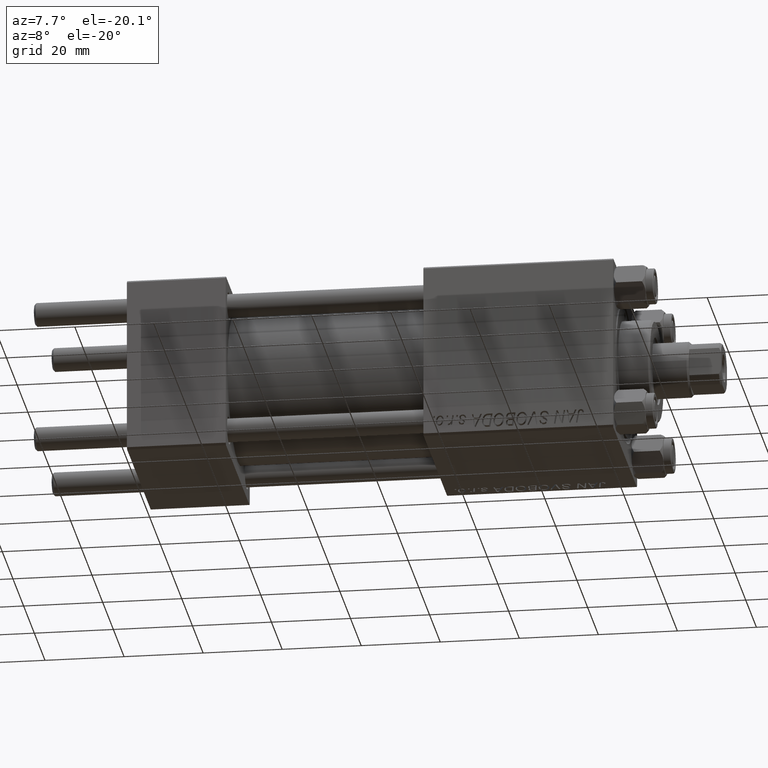
[diagram: clean part render]
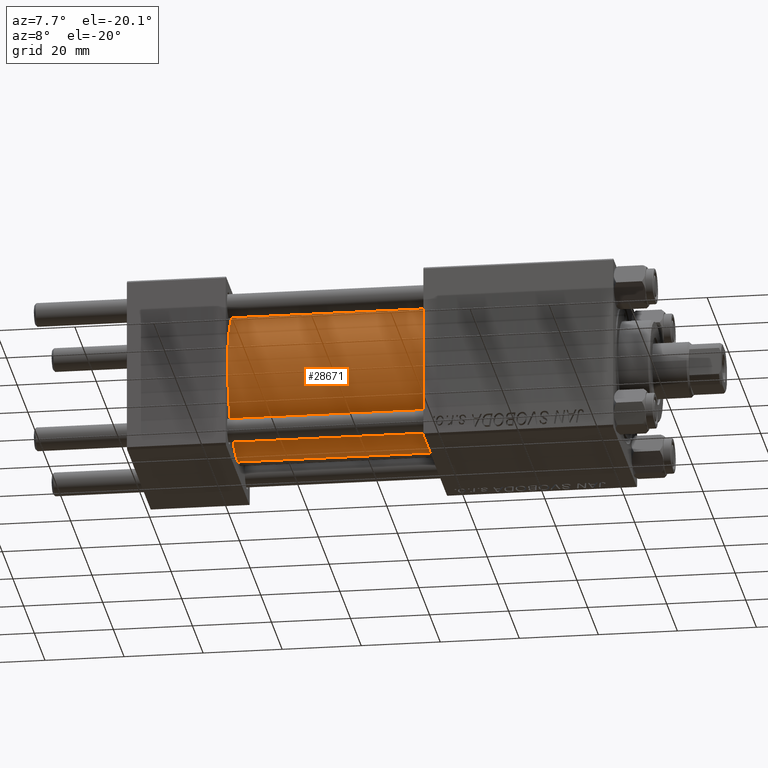
[diagram: same view with one face highlighted and labeled with its STEP entity id]
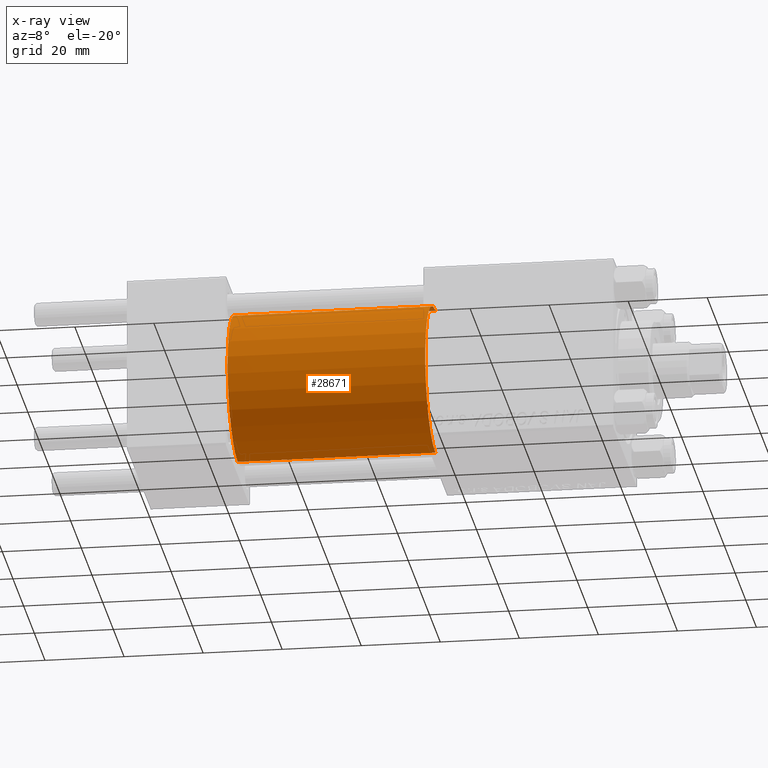
[diagram: x-ray of the same camera — body ghosted, the highlighted face saturated]
A machine part, auxiliary view. The second image highlights one B-rep face of the part: STEP entity #28671.
The next image is the same camera in x-ray: the body ghosted, the highlighted face saturated — about 0% of this face is hidden behind the body in this view.
In plain terms, the highlighted cylindrical surface (partial cylindrical patch) has radius 19 mm, axis along (-1, -0, -0).
Its self-contained STEP definition (entity closure, byte-faithful):
#46 = CARTESIAN_POINT ( 'NONE',  ( 75.00000000000001421, 0.000000000000000000, 19.00000000000000000 ) ) ;
#2240 = EDGE_CURVE ( 'NONE', #41852, #49137, #45169, .T. ) ;
#4967 = CARTESIAN_POINT ( 'NONE',  ( 75.00000000000001421, 2.326828918379970970E-15, -19.00000000000000000 ) ) ;
#5012 = CARTESIAN_POINT ( 'NONE',  ( 75.00000000000001421, 0.000000000000000000, 0.000000000000000000 ) ) ;
#5536 = VERTEX_POINT ( 'NONE', #46 ) ;
#6047 = FACE_OUTER_BOUND ( 'NONE', #27150, .T. ) ;
#7091 = CIRCLE ( 'NONE', #35380, 19.00000000000000000 ) ;
#7823 = ORIENTED_EDGE ( 'NONE', *, *, #24546, .T. ) ;
#9281 = DIRECTION ( 'NONE',  ( 1.000000000000000000, 0.000000000000000000, 0.000000000000000000 ) ) ;
#9824 = CARTESIAN_POINT ( 'NONE',  ( 75.00000000000001421, 0.000000000000000000, 0.000000000000000000 ) ) ;
#13328 = ORIENTED_EDGE ( 'NONE', *, *, #2240, .F. ) ;
#13507 = DIRECTION ( 'NONE',  ( 0.000000000000000000, 0.000000000000000000, 1.000000000000000000 ) ) ;
#13597 = CARTESIAN_POINT ( 'NONE',  ( 75.00000000000001421, 0.000000000000000000, 19.00000000000000000 ) ) ;
#13842 = LINE ( 'NONE', #13597, #43397 ) ;
#24546 = EDGE_CURVE ( 'NONE', #5536, #31955, #13842, .T. ) ;
#25263 = DIRECTION ( 'NONE',  ( -1.000000000000000000, -0.000000000000000000, -0.000000000000000000 ) ) ;
#25547 = ORIENTED_EDGE ( 'NONE', *, *, #45449, .F. ) ;
#27150 = EDGE_LOOP ( 'NONE', ( #13328, #25547, #7823, #30850 ) ) ;
#28671 = ADVANCED_FACE ( 'NONE', ( #6047 ), #47307, .T. ) ;
#28841 = VECTOR ( 'NONE', #29499, 1000.000000000000000 ) ;
#29499 = DIRECTION ( 'NONE',  ( -1.000000000000000000, -0.000000000000000000, -0.000000000000000000 ) ) ;
#30087 = EDGE_CURVE ( 'NONE', #31955, #49137, #7091, .T. ) ;
#30118 = AXIS2_PLACEMENT_3D ( 'NONE', #5012, #9281, #43215 ) ;
#30850 = ORIENTED_EDGE ( 'NONE', *, *, #30087, .T. ) ;
#30919 = CIRCLE ( 'NONE', #30118, 19.00000000000000000 ) ;
#31955 = VERTEX_POINT ( 'NONE', #43672 ) ;
#32120 = DIRECTION ( 'NONE',  ( 0.000000000000000000, 0.000000000000000000, 1.000000000000000000 ) ) ;
#32747 = DIRECTION ( 'NONE',  ( 1.000000000000000000, -0.000000000000000000, 0.000000000000000000 ) ) ;
#33332 = DIRECTION ( 'NONE',  ( -1.000000000000000000, -0.000000000000000000, -0.000000000000000000 ) ) ;
#35380 = AXIS2_PLACEMENT_3D ( 'NONE', #35552, #32747, #13507 ) ;
#35552 = CARTESIAN_POINT ( 'NONE',  ( 25.00000000000000000, 0.000000000000000000, 0.000000000000000000 ) ) ;
#41385 = CARTESIAN_POINT ( 'NONE',  ( 75.00000000000001421, 2.326828918379970970E-15, -19.00000000000000000 ) ) ;
#41852 = VERTEX_POINT ( 'NONE', #4967 ) ;
#43215 = DIRECTION ( 'NONE',  ( 0.000000000000000000, 0.000000000000000000, -1.000000000000000000 ) ) ;
#43397 = VECTOR ( 'NONE', #33332, 1000.000000000000000 ) ;
#43672 = CARTESIAN_POINT ( 'NONE',  ( 25.00000000000000000, 0.000000000000000000, 19.00000000000000000 ) ) ;
#44220 = AXIS2_PLACEMENT_3D ( 'NONE', #9824, #25263, #32120 ) ;
#45169 = LINE ( 'NONE', #41385, #28841 ) ;
#45449 = EDGE_CURVE ( 'NONE', #5536, #41852, #30919, .T. ) ;
#46742 = CARTESIAN_POINT ( 'NONE',  ( 25.00000000000000000, 2.326828918379970970E-15, -19.00000000000000000 ) ) ;
#47307 = CYLINDRICAL_SURFACE ( 'NONE', #44220, 19.00000000000000000 ) ;
#49137 = VERTEX_POINT ( 'NONE', #46742 ) ;